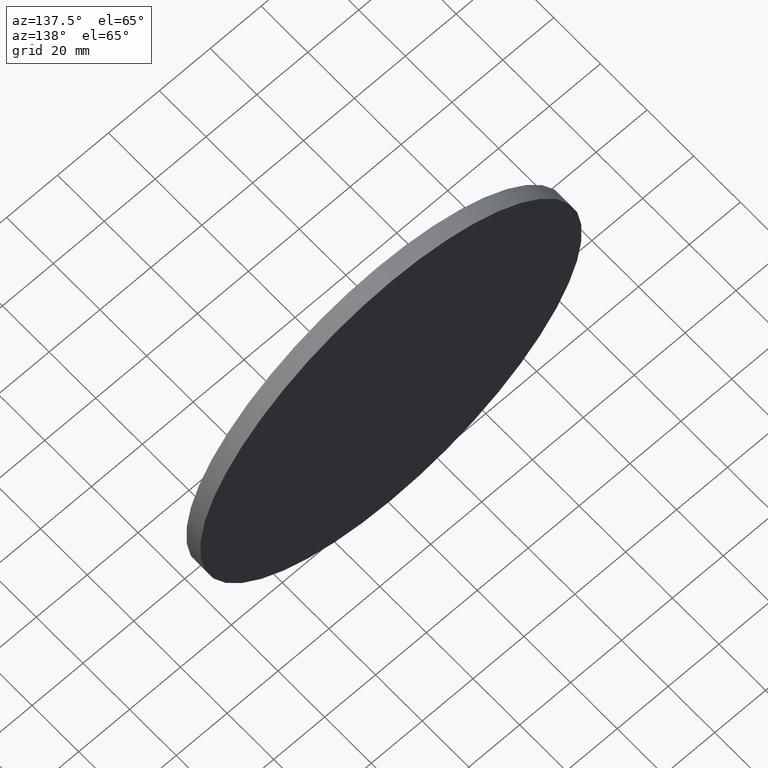
[diagram: clean part render]
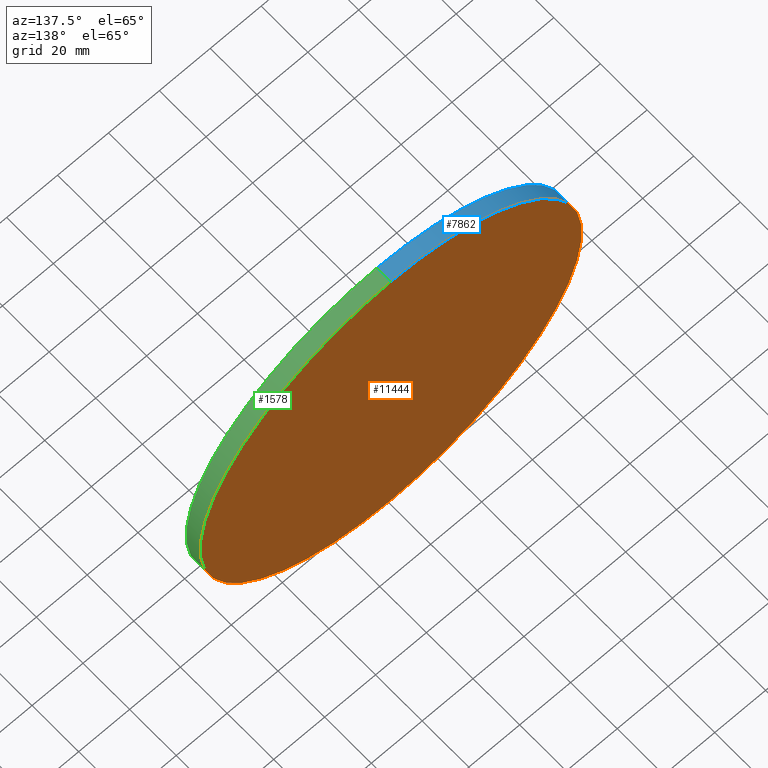
[diagram: same view with three faces highlighted in distinct colors, each labeled with its STEP entity id]
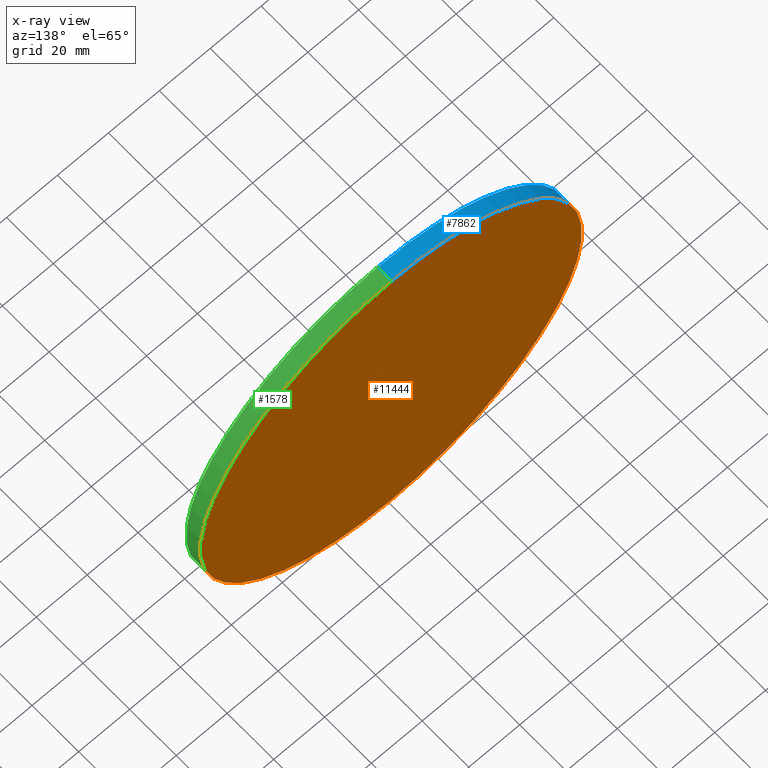
[diagram: x-ray of the same camera — body ghosted, the three highlighted faces saturated]
A machine part, auxiliary view with three faces highlighted in distinct colors.
The next image is the same camera in x-ray (body ghosted, the three faces saturated) — at least one of them is partly hidden behind the body in this view.
Their STEP definitions:

[orange] entity #11444 — the highlighted planar face has unit normal (0, 1, 0).
#215 = ORIENTED_EDGE ( 'NONE', *, *, #8867, .T. ) ;
#481 = CARTESIAN_POINT ( 'NONE',  ( 0.000000000000000000, 3.000000000000000000, 0.000000000000000000 ) ) ;
#582 = CARTESIAN_POINT ( 'NONE',  ( 0.000000000000000000, 3.000000000000000000, -75.00000000000001421 ) ) ;
#831 = CIRCLE ( 'NONE', #4624, 75.00000000000001421 ) ;
#2088 = DIRECTION ( 'NONE',  ( 0.000000000000000000, 1.000000000000000000, 0.000000000000000000 ) ) ;
#2558 = AXIS2_PLACEMENT_3D ( 'NONE', #9954, #2088, #3157 ) ;
#2562 = AXIS2_PLACEMENT_3D ( 'NONE', #481, #7370, #6409 ) ;
#3040 = CIRCLE ( 'NONE', #2558, 75.00000000000001421 ) ;
#3157 = DIRECTION ( 'NONE',  ( 0.000000000000000000, 0.000000000000000000, 1.000000000000000000 ) ) ;
#3214 = VERTEX_POINT ( 'NONE', #6730 ) ;
#4410 = PLANE ( 'NONE',  #2562 ) ;
#4624 = AXIS2_PLACEMENT_3D ( 'NONE', #5599, #7421, #10444 ) ;
#5548 = EDGE_CURVE ( 'NONE', #8907, #3214, #3040, .T. ) ;
#5599 = CARTESIAN_POINT ( 'NONE',  ( 0.000000000000000000, 3.000000000000000000, 0.000000000000000000 ) ) ;
#6009 = EDGE_LOOP ( 'NONE', ( #6077, #215 ) ) ;
#6077 = ORIENTED_EDGE ( 'NONE', *, *, #5548, .T. ) ;
#6409 = DIRECTION ( 'NONE',  ( 0.000000000000000000, -0.000000000000000000, 1.000000000000000000 ) ) ;
#6730 = CARTESIAN_POINT ( 'NONE',  ( 9.184850993605150311E-15, 3.000000000000000000, 75.00000000000001421 ) ) ;
#7370 = DIRECTION ( 'NONE',  ( 0.000000000000000000, 1.000000000000000000, 0.000000000000000000 ) ) ;
#7421 = DIRECTION ( 'NONE',  ( 0.000000000000000000, 1.000000000000000000, 0.000000000000000000 ) ) ;
#8867 = EDGE_CURVE ( 'NONE', #3214, #8907, #831, .T. ) ;
#8907 = VERTEX_POINT ( 'NONE', #582 ) ;
#9954 = CARTESIAN_POINT ( 'NONE',  ( 0.000000000000000000, 3.000000000000000000, 0.000000000000000000 ) ) ;
#10444 = DIRECTION ( 'NONE',  ( 0.000000000000000000, 0.000000000000000000, 1.000000000000000000 ) ) ;
#10866 = FACE_OUTER_BOUND ( 'NONE', #6009, .T. ) ;
#11444 = ADVANCED_FACE ( 'NONE', ( #10866 ), #4410, .T. ) ;

[blue] entity #7862 — the highlighted cylindrical surface (partial cylindrical patch) has radius 75 mm, axis along (-0, -1, -0).
#309 = LINE ( 'NONE', #3232, #1358 ) ;
#393 = FACE_OUTER_BOUND ( 'NONE', #8407, .T. ) ;
#582 = CARTESIAN_POINT ( 'NONE',  ( 0.000000000000000000, 3.000000000000000000, -75.00000000000001421 ) ) ;
#1135 = VERTEX_POINT ( 'NONE', #6237 ) ;
#1358 = VECTOR ( 'NONE', #5217, 1000.000000000000000 ) ;
#1559 = AXIS2_PLACEMENT_3D ( 'NONE', #10491, #11433, #5527 ) ;
#2088 = DIRECTION ( 'NONE',  ( 0.000000000000000000, 1.000000000000000000, 0.000000000000000000 ) ) ;
#2264 = EDGE_CURVE ( 'NONE', #3214, #6044, #309, .T. ) ;
#2355 = DIRECTION ( 'NONE',  ( -0.000000000000000000, -1.000000000000000000, -0.000000000000000000 ) ) ;
#2558 = AXIS2_PLACEMENT_3D ( 'NONE', #9954, #2088, #3157 ) ;
#3040 = CIRCLE ( 'NONE', #2558, 75.00000000000001421 ) ;
#3157 = DIRECTION ( 'NONE',  ( 0.000000000000000000, 0.000000000000000000, 1.000000000000000000 ) ) ;
#3214 = VERTEX_POINT ( 'NONE', #6730 ) ;
#3232 = CARTESIAN_POINT ( 'NONE',  ( 9.184850993605150311E-15, 3.000000000000000000, 75.00000000000001421 ) ) ;
#3476 = ORIENTED_EDGE ( 'NONE', *, *, #5548, .F. ) ;
#3834 = ORIENTED_EDGE ( 'NONE', *, *, #2264, .F. ) ;
#3903 = VECTOR ( 'NONE', #2355, 1000.000000000000000 ) ;
#4402 = CYLINDRICAL_SURFACE ( 'NONE', #1559, 75.00000000000001421 ) ;
#4546 = ORIENTED_EDGE ( 'NONE', *, *, #10904, .T. ) ;
#4883 = EDGE_CURVE ( 'NONE', #1135, #6044, #6881, .T. ) ;
#5217 = DIRECTION ( 'NONE',  ( -0.000000000000000000, -1.000000000000000000, -0.000000000000000000 ) ) ;
#5439 = CARTESIAN_POINT ( 'NONE',  ( 0.000000000000000000, 3.000000000000000000, -75.00000000000001421 ) ) ;
#5527 = DIRECTION ( 'NONE',  ( 0.000000000000000000, 0.000000000000000000, -1.000000000000000000 ) ) ;
#5548 = EDGE_CURVE ( 'NONE', #8907, #3214, #3040, .T. ) ;
#6044 = VERTEX_POINT ( 'NONE', #7739 ) ;
#6237 = CARTESIAN_POINT ( 'NONE',  ( 0.000000000000000000, -3.000000000000000000, -75.00000000000001421 ) ) ;
#6730 = CARTESIAN_POINT ( 'NONE',  ( 9.184850993605150311E-15, 3.000000000000000000, 75.00000000000001421 ) ) ;
#6881 = CIRCLE ( 'NONE', #10038, 75.00000000000001421 ) ;
#7739 = CARTESIAN_POINT ( 'NONE',  ( 9.184850993605150311E-15, -3.000000000000000000, 75.00000000000001421 ) ) ;
#7862 = ADVANCED_FACE ( 'NONE', ( #393 ), #4402, .T. ) ;
#8407 = EDGE_LOOP ( 'NONE', ( #3834, #3476, #4546, #9041 ) ) ;
#8907 = VERTEX_POINT ( 'NONE', #582 ) ;
#9041 = ORIENTED_EDGE ( 'NONE', *, *, #4883, .T. ) ;
#9954 = CARTESIAN_POINT ( 'NONE',  ( 0.000000000000000000, 3.000000000000000000, 0.000000000000000000 ) ) ;
#10038 = AXIS2_PLACEMENT_3D ( 'NONE', #12301, #10589, #11272 ) ;
#10491 = CARTESIAN_POINT ( 'NONE',  ( 0.000000000000000000, 3.000000000000000000, 0.000000000000000000 ) ) ;
#10589 = DIRECTION ( 'NONE',  ( 0.000000000000000000, 1.000000000000000000, 0.000000000000000000 ) ) ;
#10904 = EDGE_CURVE ( 'NONE', #8907, #1135, #11804, .T. ) ;
#11272 = DIRECTION ( 'NONE',  ( 0.000000000000000000, 0.000000000000000000, 1.000000000000000000 ) ) ;
#11433 = DIRECTION ( 'NONE',  ( -0.000000000000000000, -1.000000000000000000, -0.000000000000000000 ) ) ;
#11804 = LINE ( 'NONE', #5439, #3903 ) ;
#12301 = CARTESIAN_POINT ( 'NONE',  ( 0.000000000000000000, -3.000000000000000000, 0.000000000000000000 ) ) ;

[green] entity #1578 — the highlighted cylindrical surface (partial cylindrical patch) has radius 75 mm, axis along (-0, -1, -0).
#309 = LINE ( 'NONE', #3232, #1358 ) ;
#582 = CARTESIAN_POINT ( 'NONE',  ( 0.000000000000000000, 3.000000000000000000, -75.00000000000001421 ) ) ;
#831 = CIRCLE ( 'NONE', #4624, 75.00000000000001421 ) ;
#1135 = VERTEX_POINT ( 'NONE', #6237 ) ;
#1358 = VECTOR ( 'NONE', #5217, 1000.000000000000000 ) ;
#1578 = ADVANCED_FACE ( 'NONE', ( #9734 ), #3218, .T. ) ;
#1929 = ORIENTED_EDGE ( 'NONE', *, *, #8867, .F. ) ;
#2264 = EDGE_CURVE ( 'NONE', #3214, #6044, #309, .T. ) ;
#2355 = DIRECTION ( 'NONE',  ( -0.000000000000000000, -1.000000000000000000, -0.000000000000000000 ) ) ;
#2458 = CARTESIAN_POINT ( 'NONE',  ( 0.000000000000000000, 3.000000000000000000, 0.000000000000000000 ) ) ;
#3214 = VERTEX_POINT ( 'NONE', #6730 ) ;
#3218 = CYLINDRICAL_SURFACE ( 'NONE', #8777, 75.00000000000001421 ) ;
#3232 = CARTESIAN_POINT ( 'NONE',  ( 9.184850993605150311E-15, 3.000000000000000000, 75.00000000000001421 ) ) ;
#3304 = ORIENTED_EDGE ( 'NONE', *, *, #2264, .T. ) ;
#3438 = DIRECTION ( 'NONE',  ( 0.000000000000000000, 0.000000000000000000, 1.000000000000000000 ) ) ;
#3903 = VECTOR ( 'NONE', #2355, 1000.000000000000000 ) ;
#4322 = DIRECTION ( 'NONE',  ( 0.000000000000000000, 0.000000000000000000, -1.000000000000000000 ) ) ;
#4345 = EDGE_CURVE ( 'NONE', #6044, #1135, #4752, .T. ) ;
#4624 = AXIS2_PLACEMENT_3D ( 'NONE', #5599, #7421, #10444 ) ;
#4752 = CIRCLE ( 'NONE', #11358, 75.00000000000001421 ) ;
#5217 = DIRECTION ( 'NONE',  ( -0.000000000000000000, -1.000000000000000000, -0.000000000000000000 ) ) ;
#5411 = CARTESIAN_POINT ( 'NONE',  ( 0.000000000000000000, -3.000000000000000000, 0.000000000000000000 ) ) ;
#5439 = CARTESIAN_POINT ( 'NONE',  ( 0.000000000000000000, 3.000000000000000000, -75.00000000000001421 ) ) ;
#5599 = CARTESIAN_POINT ( 'NONE',  ( 0.000000000000000000, 3.000000000000000000, 0.000000000000000000 ) ) ;
#6044 = VERTEX_POINT ( 'NONE', #7739 ) ;
#6237 = CARTESIAN_POINT ( 'NONE',  ( 0.000000000000000000, -3.000000000000000000, -75.00000000000001421 ) ) ;
#6730 = CARTESIAN_POINT ( 'NONE',  ( 9.184850993605150311E-15, 3.000000000000000000, 75.00000000000001421 ) ) ;
#6975 = ORIENTED_EDGE ( 'NONE', *, *, #4345, .T. ) ;
#7421 = DIRECTION ( 'NONE',  ( 0.000000000000000000, 1.000000000000000000, 0.000000000000000000 ) ) ;
#7739 = CARTESIAN_POINT ( 'NONE',  ( 9.184850993605150311E-15, -3.000000000000000000, 75.00000000000001421 ) ) ;
#8084 = ORIENTED_EDGE ( 'NONE', *, *, #10904, .F. ) ;
#8328 = DIRECTION ( 'NONE',  ( 0.000000000000000000, 1.000000000000000000, 0.000000000000000000 ) ) ;
#8777 = AXIS2_PLACEMENT_3D ( 'NONE', #2458, #9369, #4322 ) ;
#8867 = EDGE_CURVE ( 'NONE', #3214, #8907, #831, .T. ) ;
#8907 = VERTEX_POINT ( 'NONE', #582 ) ;
#9080 = EDGE_LOOP ( 'NONE', ( #1929, #3304, #6975, #8084 ) ) ;
#9369 = DIRECTION ( 'NONE',  ( -0.000000000000000000, -1.000000000000000000, -0.000000000000000000 ) ) ;
#9734 = FACE_OUTER_BOUND ( 'NONE', #9080, .T. ) ;
#10444 = DIRECTION ( 'NONE',  ( 0.000000000000000000, 0.000000000000000000, 1.000000000000000000 ) ) ;
#10904 = EDGE_CURVE ( 'NONE', #8907, #1135, #11804, .T. ) ;
#11358 = AXIS2_PLACEMENT_3D ( 'NONE', #5411, #8328, #3438 ) ;
#11804 = LINE ( 'NONE', #5439, #3903 ) ;